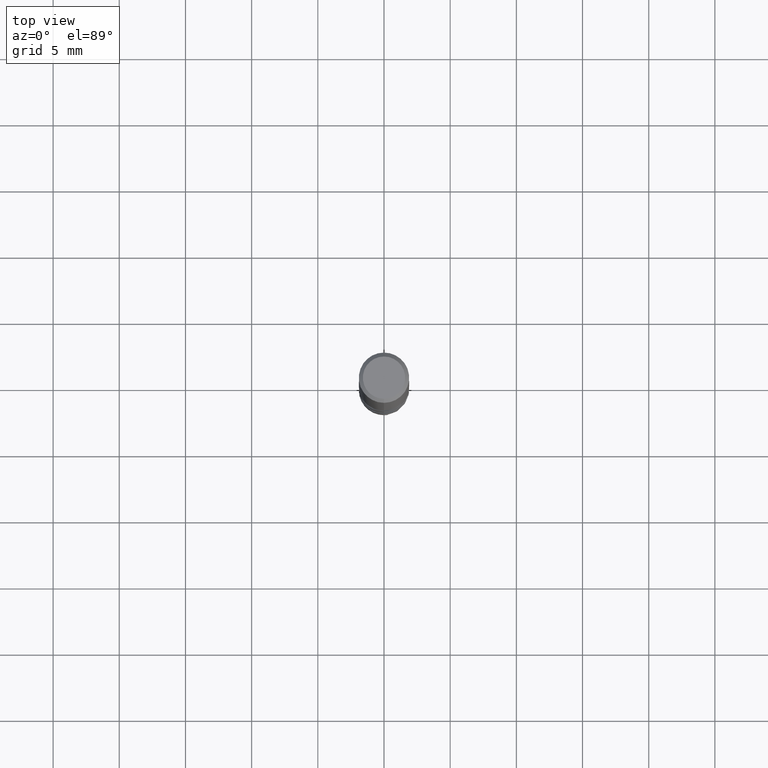
[diagram: clean part render]
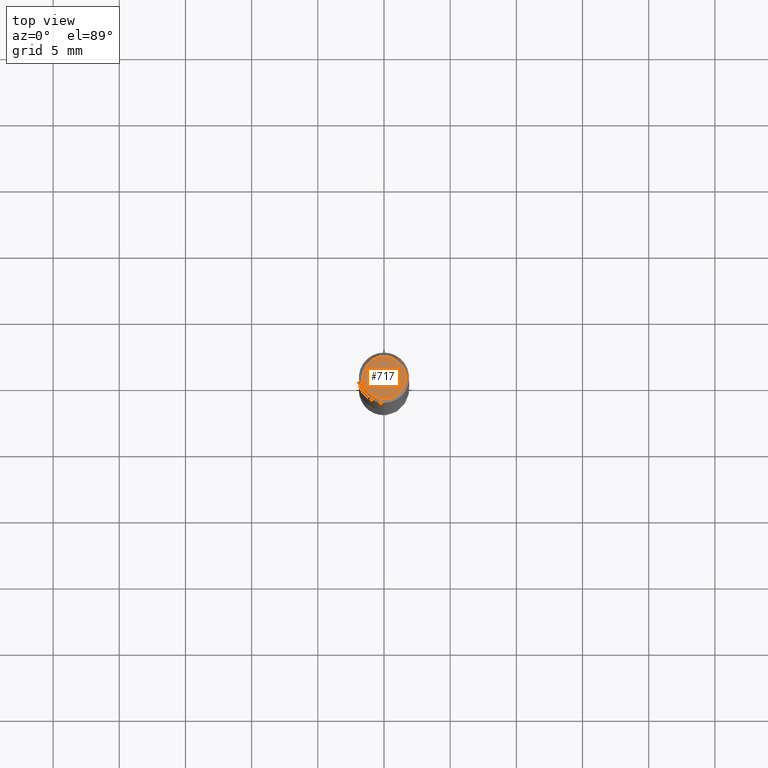
[diagram: same view with one face highlighted and labeled with its STEP entity id]
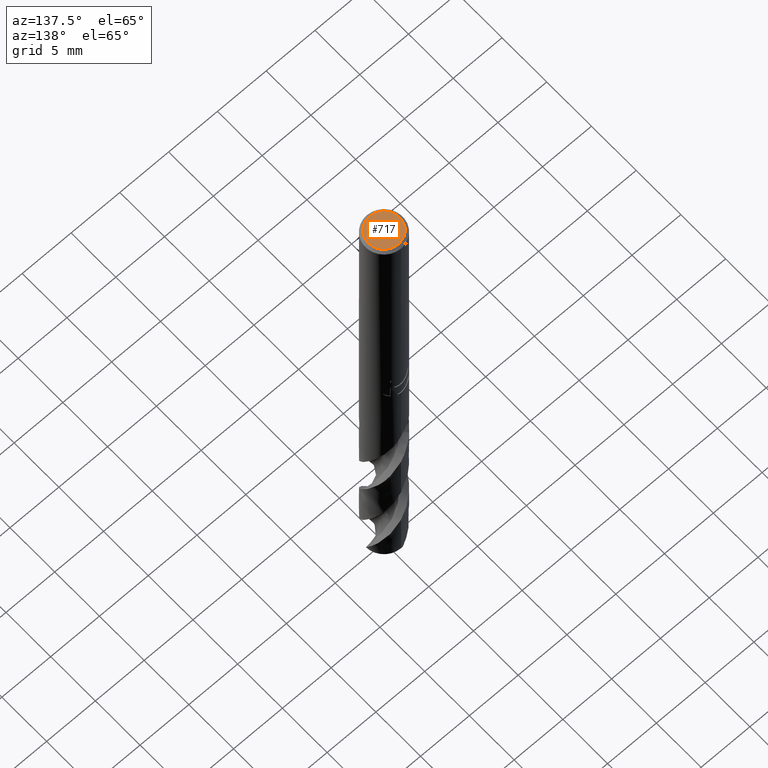
[diagram: same view with one face highlighted and labeled with its STEP entity id]
A machine part, top view. The second image highlights one B-rep face of the part: STEP entity #717.
A second angle (auxiliary view) of the same face is appended — the face is thin or edge-on in the first view.
In plain terms, the highlighted planar face has unit normal (-0, 0, 1).
Its self-contained STEP definition (entity closure, byte-faithful):
#403=EDGE_CURVE('',#669,#677,#930,.T.);
#465=EDGE_CURVE('',#677,#669,#997,.T.);
#669=VERTEX_POINT('',#1223);
#677=VERTEX_POINT('',#1231);
#717=ADVANCED_FACE('',(#1273),#1274,.T.);
#930=CIRCLE('',#2445,1.6);
#997=CIRCLE('',#3203,1.6);
#1223=CARTESIAN_POINT('',(1.9593701661158E-016,-1.6,0.0));
#1231=CARTESIAN_POINT('',(0.0,1.6,0.0));
#1273=FACE_OUTER_BOUND('',#7003,.T.);
#1274=PLANE('',#7004);
#2445=AXIS2_PLACEMENT_3D('',#7371,#7372,#7373);
#3203=AXIS2_PLACEMENT_3D('',#7424,#7425,#7426);
#7003=EDGE_LOOP('',(#7677,#7678));
#7004=AXIS2_PLACEMENT_3D('',#7679,#7680,#7681);
#7371=CARTESIAN_POINT('',(0.0,0.0,0.0));
#7372=DIRECTION('',(0.0,0.0,-1.0));
#7373=DIRECTION('',(0.0,1.0,0.0));
#7424=CARTESIAN_POINT('',(0.0,0.0,0.0));
#7425=DIRECTION('',(0.0,0.0,-1.0));
#7426=DIRECTION('',(0.0,1.0,0.0));
#7677=ORIENTED_EDGE('',*,*,#465,.F.);
#7678=ORIENTED_EDGE('',*,*,#403,.F.);
#7679=CARTESIAN_POINT('',(0.0,0.8,0.0));
#7680=DIRECTION('',(-0.0,0.0,1.0));
#7681=DIRECTION('',(0.0,-1.0,0.0));